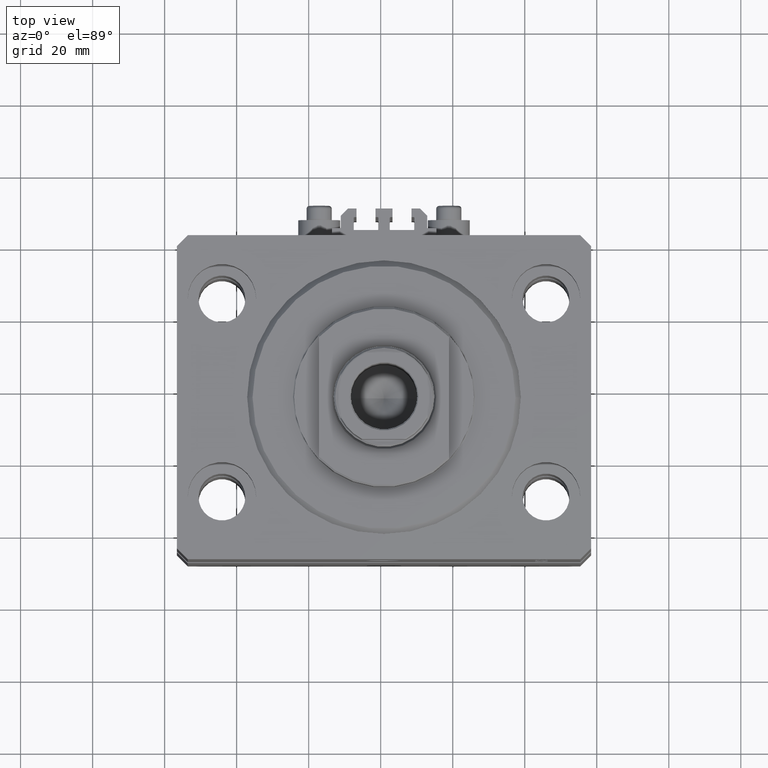
[diagram: clean part render]
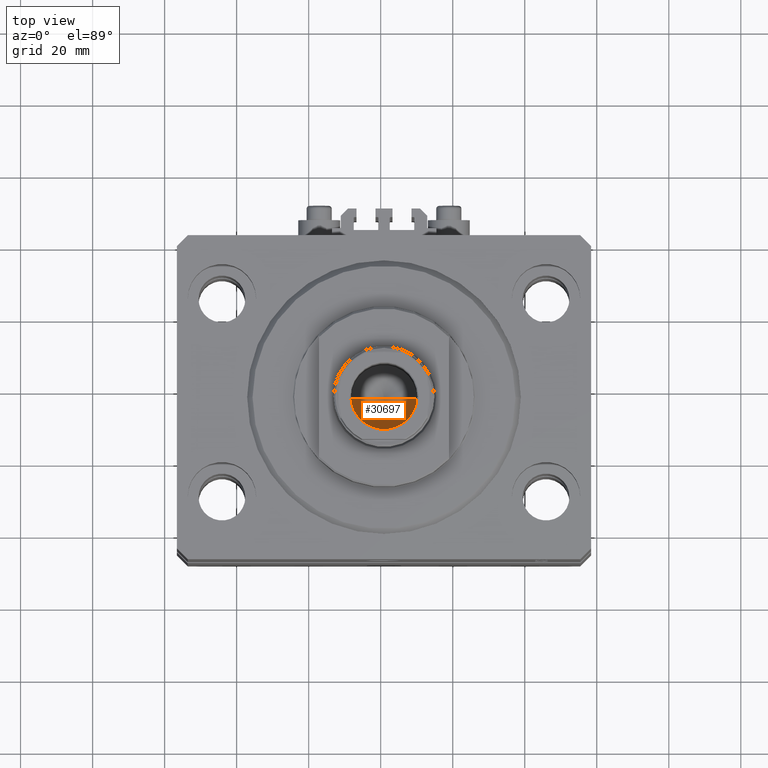
[diagram: same view with one face highlighted and labeled with its STEP entity id]
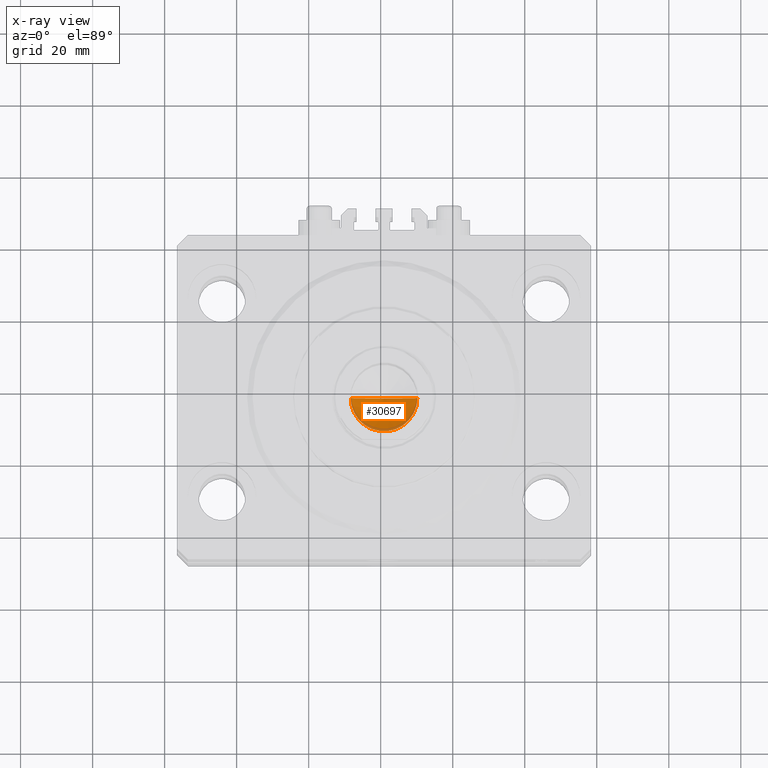
[diagram: x-ray of the same camera — body ghosted, the highlighted face saturated]
A machine part, top view. The second image highlights one B-rep face of the part: STEP entity #30697.
The next image is the same camera in x-ray: the body ghosted, the highlighted face saturated — about 8% of this face is hidden behind the body in this view.
In plain terms, the highlighted conical surface has half-angle 59 deg.
Its self-contained STEP definition (entity closure, byte-faithful):
#216 = DIRECTION ( 'NONE',  ( 1.000000000000000000, 0.000000000000000000, 0.000000000000000000 ) ) ;
#1908 = EDGE_CURVE ( 'NONE', #22703, #9949, #21566, .T. ) ;
#2217 = ORIENTED_EDGE ( 'NONE', *, *, #2860, .T. ) ;
#2716 = CONICAL_SURFACE ( 'NONE', #36529, 9.249999999999994671, 1.029744258676653423 ) ;
#2860 = EDGE_CURVE ( 'NONE', #25780, #22703, #12184, .T. ) ;
#4158 = FACE_OUTER_BOUND ( 'NONE', #20010, .T. ) ;
#7254 = DIRECTION ( 'NONE',  ( 1.000000000000000000, 0.000000000000000000, 0.000000000000000000 ) ) ;
#7667 = VECTOR ( 'NONE', #31609, 1000.000000000000000 ) ;
#9949 = VERTEX_POINT ( 'NONE', #38329 ) ;
#12184 = LINE ( 'NONE', #20065, #42016 ) ;
#13518 = ORIENTED_EDGE ( 'NONE', *, *, #1908, .T. ) ;
#15732 = CARTESIAN_POINT ( 'NONE',  ( 0.000000000000000000, 0.000000000000000000, 82.10000000000000853 ) ) ;
#18940 = DIRECTION ( 'NONE',  ( -0.000000000000000000, -0.000000000000000000, 1.000000000000000000 ) ) ;
#20010 = EDGE_LOOP ( 'NONE', ( #45252, #2217, #13518 ) ) ;
#20065 = CARTESIAN_POINT ( 'NONE',  ( -9.249999999999994671, 1.132798289211300909E-15, 82.10000000000000853 ) ) ;
#21566 = CIRCLE ( 'NONE', #34931, 9.249999999999994671 ) ;
#22703 = VERTEX_POINT ( 'NONE', #27500 ) ;
#25780 = VERTEX_POINT ( 'NONE', #29217 ) ;
#26203 = CARTESIAN_POINT ( 'NONE',  ( 0.000000000000000000, 0.000000000000000000, 82.10000000000000853 ) ) ;
#27500 = CARTESIAN_POINT ( 'NONE',  ( -9.249999999999994671, 1.132798289211300909E-15, 82.10000000000000853 ) ) ;
#27921 = LINE ( 'NONE', #46868, #7667 ) ;
#29217 = CARTESIAN_POINT ( 'NONE',  ( -1.046994375366439223E-14, 0.000000000000000000, 76.54203927399507279 ) ) ;
#30697 = ADVANCED_FACE ( 'NONE', ( #4158 ), #2716, .F. ) ;
#31609 = DIRECTION ( 'NONE',  ( 0.8571673007021117785, 0.000000000000000000, 0.5150380749100550437 ) ) ;
#34931 = AXIS2_PLACEMENT_3D ( 'NONE', #26203, #44669, #7254 ) ;
#36529 = AXIS2_PLACEMENT_3D ( 'NONE', #15732, #18940, #216 ) ;
#38329 = CARTESIAN_POINT ( 'NONE',  ( 9.249999999999994671, 0.000000000000000000, 82.10000000000000853 ) ) ;
#41369 = EDGE_CURVE ( 'NONE', #25780, #9949, #27921, .T. ) ;
#41491 = DIRECTION ( 'NONE',  ( -0.8571673007021117785, 1.049727191138617956E-16, 0.5150380749100550437 ) ) ;
#42016 = VECTOR ( 'NONE', #41491, 1000.000000000000000 ) ;
#44669 = DIRECTION ( 'NONE',  ( -0.000000000000000000, -0.000000000000000000, 1.000000000000000000 ) ) ;
#45252 = ORIENTED_EDGE ( 'NONE', *, *, #41369, .F. ) ;
#46868 = CARTESIAN_POINT ( 'NONE',  ( 9.249999999999994671, 0.000000000000000000, 82.10000000000000853 ) ) ;